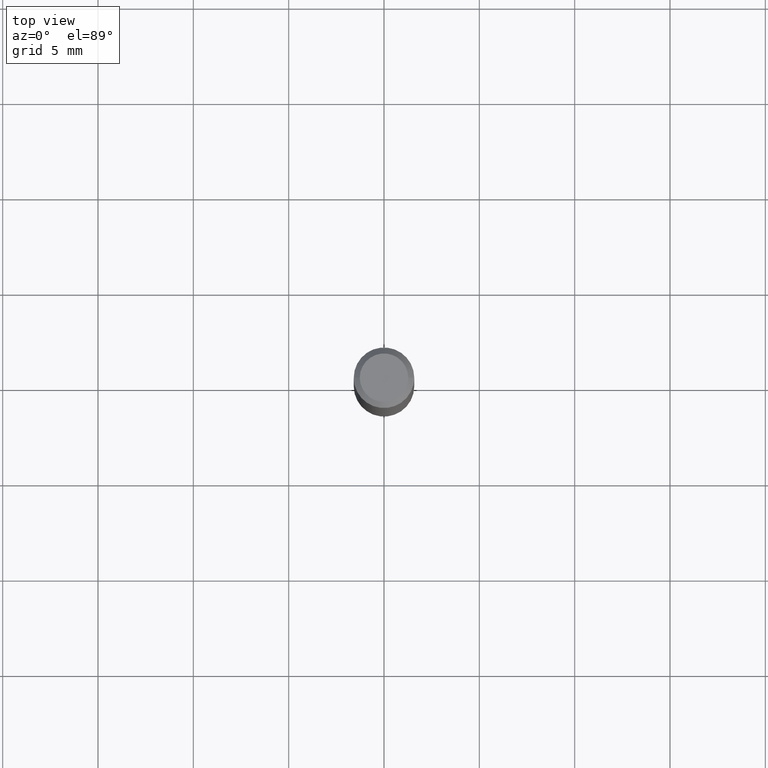
[diagram: clean part render]
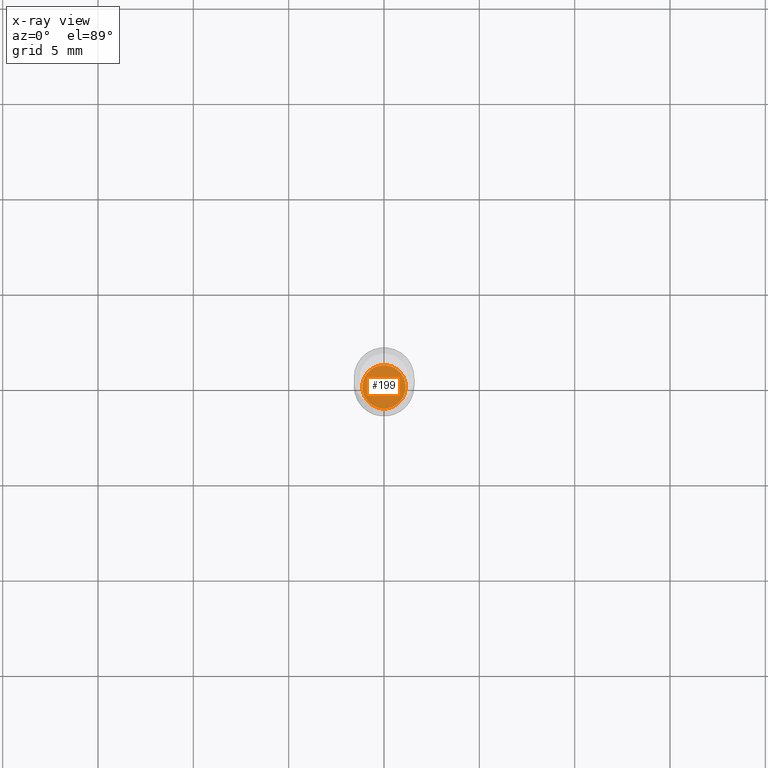
[diagram: x-ray — body ghosted, one internal face saturated and labeled with its STEP entity id]
A machine part, top view, then the same camera in x-ray: the body is ghosted and one INTERNAL B-rep face — a face not visible from any outside direction — is saturated and labeled: STEP entity #199.
In plain terms, the highlighted planar face has unit normal (-0, 0, 1).
Its self-contained STEP definition (entity closure, byte-faithful):
#71 = AXIS2_PLACEMENT_3D ( 'NONE', #472, #243, #208 ) ;
#74 = CARTESIAN_POINT ( 'NONE',  ( 2.690015686803650369E-29, -3.840629472727460101E-15, -1.100000000000000089 ) ) ;
#86 = CARTESIAN_POINT ( 'NONE',  ( 0.04479999999999999954, -4.153466200687805374E-15, -1.100000000000000089 ) ) ;
#131 = EDGE_CURVE ( 'NONE', #451, #234, #221, .T. ) ;
#142 = DIRECTION ( 'NONE',  ( -2.438088387897960049E-29, 3.491481338843145188E-15, 1.000000000000000000 ) ) ;
#167 = CIRCLE ( 'NONE', #399, 0.04479999999999999954 ) ;
#186 = EDGE_LOOP ( 'NONE', ( #190, #195 ) ) ;
#190 = ORIENTED_EDGE ( 'NONE', *, *, #131, .F. ) ;
#195 = ORIENTED_EDGE ( 'NONE', *, *, #226, .F. ) ;
#199 = ADVANCED_FACE ( 'NONE', ( #450 ), #254, .F. ) ;
#208 = DIRECTION ( 'NONE',  ( 1.000000000000000000, -6.982962677686269866E-15, 0.000000000000000000 ) ) ;
#221 = CIRCLE ( 'NONE', #71, 0.04479999999999999954 ) ;
#226 = EDGE_CURVE ( 'NONE', #234, #451, #167, .T. ) ;
#234 = VERTEX_POINT ( 'NONE', #360 ) ;
#243 = DIRECTION ( 'NONE',  ( -2.445468806185136597E-29, 3.491481338843145583E-15, 1.000000000000000000 ) ) ;
#254 = PLANE ( 'NONE',  #476 ) ;
#360 = CARTESIAN_POINT ( 'NONE',  ( -0.04479999999999999954, -3.519657099932823971E-15, -1.100000000000000089 ) ) ;
#399 = AXIS2_PLACEMENT_3D ( 'NONE', #412, #482, #409 ) ;
#409 = DIRECTION ( 'NONE',  ( 1.000000000000000000, -6.982962677686269866E-15, 0.000000000000000000 ) ) ;
#412 = CARTESIAN_POINT ( 'NONE',  ( 2.690015686803650369E-29, -3.840629472727460101E-15, -1.100000000000000089 ) ) ;
#450 = FACE_OUTER_BOUND ( 'NONE', #186, .T. ) ;
#451 = VERTEX_POINT ( 'NONE', #86 ) ;
#472 = CARTESIAN_POINT ( 'NONE',  ( 2.690015686803650369E-29, -3.840629472727460101E-15, -1.100000000000000089 ) ) ;
#476 = AXIS2_PLACEMENT_3D ( 'NONE', #74, #142, #485 ) ;
#482 = DIRECTION ( 'NONE',  ( -2.445468806185136597E-29, 3.491481338843145583E-15, 1.000000000000000000 ) ) ;
#485 = DIRECTION ( 'NONE',  ( 1.000000000000000000, -6.982962677686265922E-15, 4.876176775795935793E-29 ) ) ;